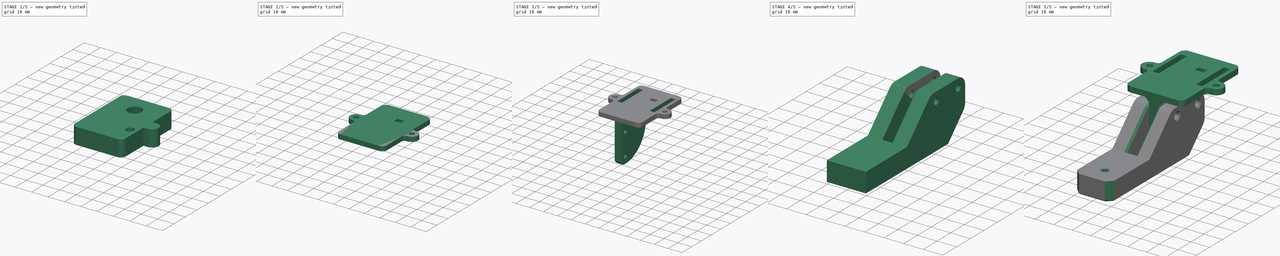
[diagram: build sequence overview — one tinted view per stage of 5, left to right]
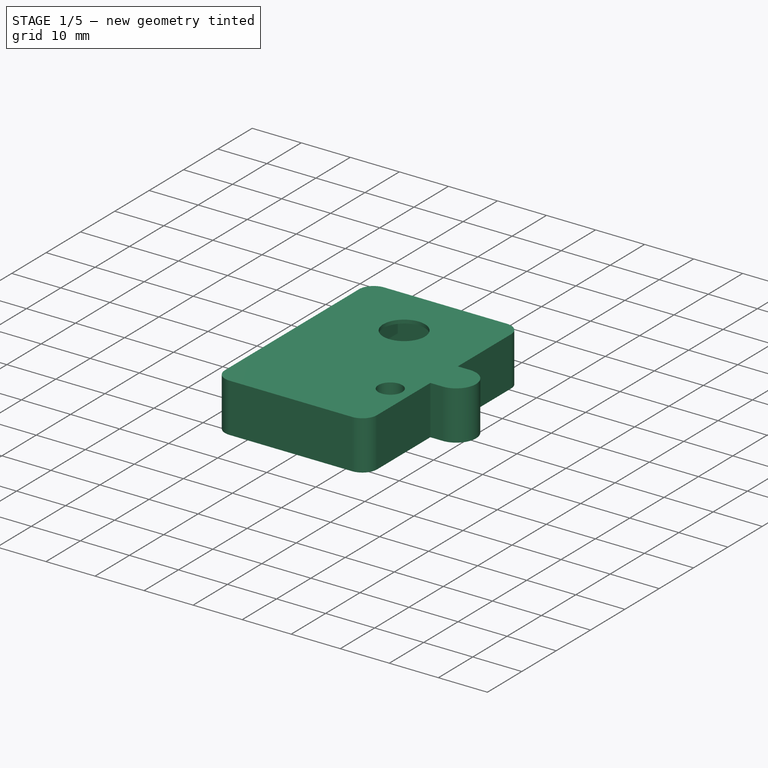
[diagram: stage 1 of 5 — iso view after this stage's code; geometry added in this stage tinted green]
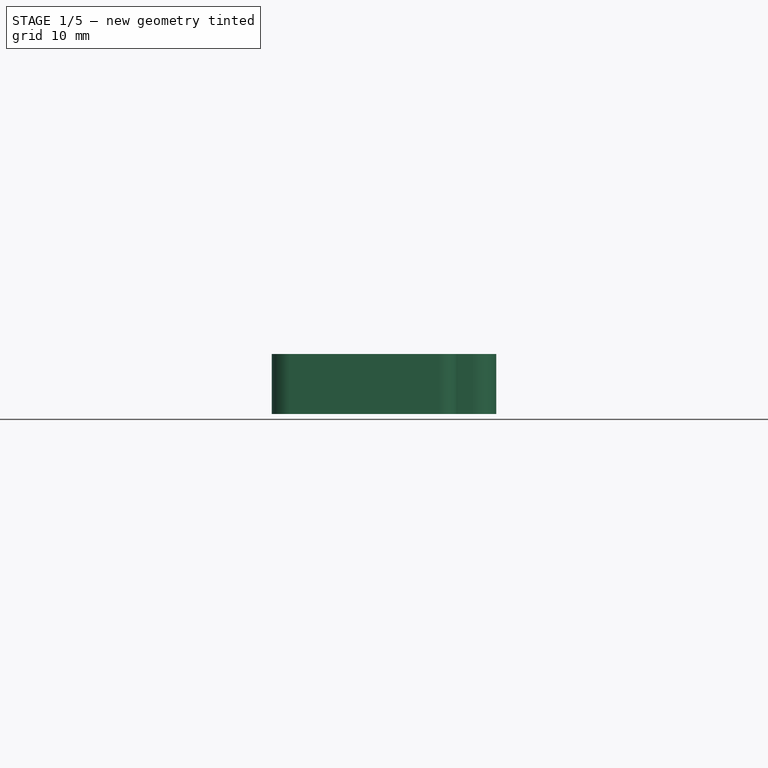
[diagram: stage 1 of 5 — front view after this stage's code; geometry added in this stage tinted green]
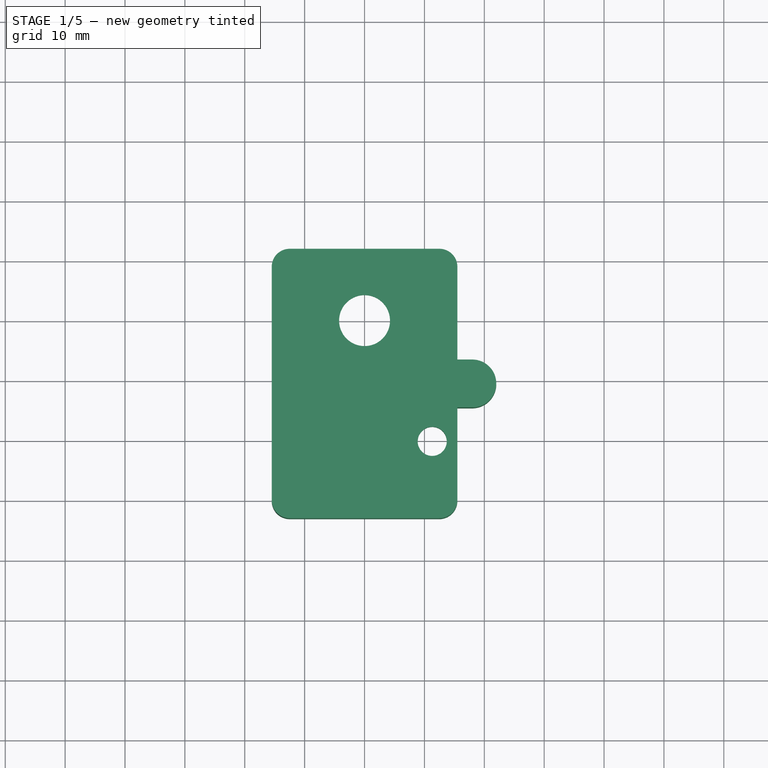
[diagram: stage 1 of 5 — top view after this stage's code; geometry added in this stage tinted green]
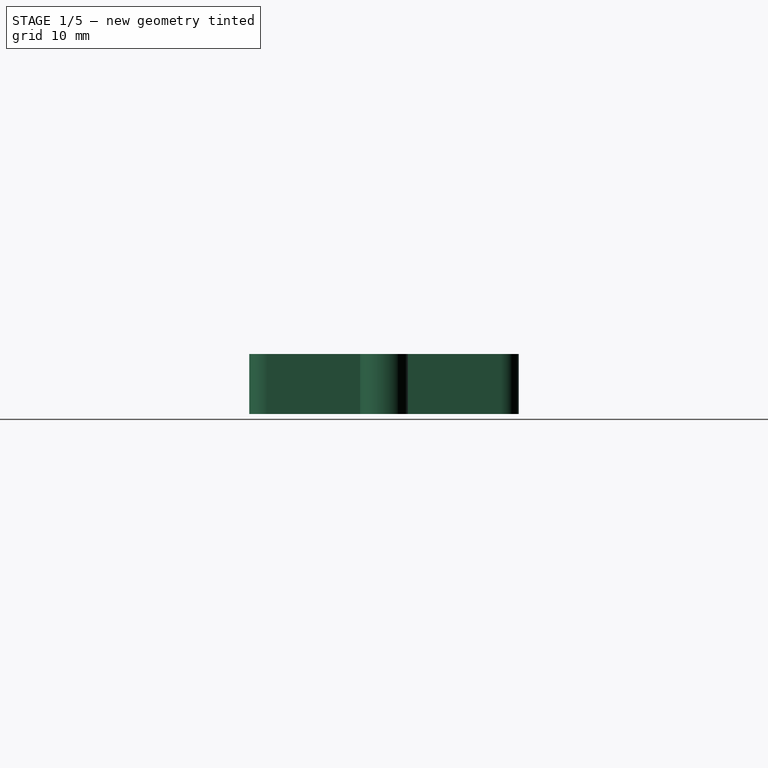
[diagram: stage 1 of 5 — right view after this stage's code; geometry added in this stage tinted green]
FCSTD DOCUMENT  (FreeCAD 1.2R20260429 (Git shallow))
Label: EspCamSupport
License: All rights reserved
objects: Sketcher::SketchObject×14, PartDesign::Pocket×9, PartDesign::Chamfer×8, PartDesign::Pad×5, PartDesign::Fillet×5, App::Point×4, PartDesign::Body×3, Image::ImagePlane×2, PartDesign::Mirrored×2, PartDesign::ShapeBinder×2, Part::Feature×1, App::Part×1, Part::DatumLine×1, PartDesign::PolarPattern×1
note: 121 computed .brp shape members not serialized (recipe doc carries the construction recipe); baked Part::Feature solids carry a one-line shape summary decoded from their .brp

FEATURE [Part::Feature] Part__Feature020  label="ClipRail"
  Placement = pos=(-1.10003e-11,-70.5,-83) rot=(0.774597,-0.447214,0.447214;1.82348rad)
  shape: bbox 27.84 x 20 x 21.97 mm, 24 faces (baked)
FEATURE [Image::ImagePlane] image1_2  label="image1-2"
  XSize = 41.453
  YSize = 73.2026
FEATURE [Image::ImagePlane] image1
  Placement = pos=(-0.433,-5.867,0) rot=(0,0,1;0rad)
  XSize = 55.0562
  YSize = 95.2704
FEATURE [App::Point] Origin003  label="Origine-point001"
  Role = Origin
FEATURE [App::Part] Part
  Group = -> [image1,image1_2]
  Origin = -> Origin004
  Placement = pos=(-2.427,-16.404,0) rot=(0,0,1;0rad)
FEATURE [App::Point] Origin005  label="Origine-point002"
  Role = Origin
FEATURE [Sketcher::SketchObject] Sketch001
  ArcFitTolerance = 1e-06
  AttachmentSupport = -> [Origin002]
  ExternalTypes = [0]
  FullyConstrained = false
  MakeInternals = true
  MapMode = 5
  sketch-geometry (7):
    g0: Circle CenterX=0 CenterY=0 CenterZ=0 NormalX=0 NormalY=0 NormalZ=1 AngleXU=0 Radius=4.25
    g1: LineSegment StartX=-15.5 StartY=-33 StartZ=0 EndX=15.5 EndY=-33 EndZ=0
    g2: LineSegment StartX=15.5 StartY=-33 StartZ=0 EndX=15.5 EndY=12 EndZ=0
    g3: LineSegment StartX=15.5 StartY=12 StartZ=0 EndX=-15.5 EndY=12 EndZ=0
    g4: LineSegment StartX=-15.5 StartY=12 StartZ=0 EndX=-15.5 EndY=-33 EndZ=0
    g5: GeomPoint [constr] X=0 Y=-10.5 Z=0
    g6: Circle CenterX=11.301 CenterY=-20.1664 CenterZ=0 NormalX=0 NormalY=0 NormalZ=1 AngleXU=0 Radius=2.4289
  constraints (15):
    c: Coincident(g0,g-1)
    c: Diameter(g0) = 8.5
    c: Coincident(g1,g2)
    c: Coincident(g2,g3)
    c: Coincident(g3,g4)
    c: Coincident(g4,g1)
    c: Horizontal(g1)
    c: Horizontal(g3)
    c: Vertical(g2)
    c: Vertical(g4)
    c: Symmetric(g3,g1,g5)
    c: PointOnObject(g5,g-2)
    c: DistanceX(g3,g3) = 31
    c: DistanceY(g2,g2) = 45
    c: Distance(g3,g-1) = 12
FEATURE [PartDesign::Pad] Pad001
  Direction = (0,0,1)
  Length = 10
  Length2 = 10
  Profile = -> Sketch001
  ReferenceAxis = -> Sketch001 [N_Axis]
  Refine = true
  SideType = 0
  Suppressed = false
  Type = 0
  Type2 = 0
FEATURE [Sketcher::SketchObject] Sketch002
  ArcFitTolerance = 1e-06
  AttachmentSupport = -> [Pad001]
  ExternalGeometry = -> [Pad001]
  ExternalTypes = [0,0]
  FullyConstrained = true
  MakeInternals = true
  MapMode = 5
  Placement = pos=(0,0,0) rot=(1,0,0;3.14159rad)
  sketch-geometry (5):
    g0: LineSegment StartX=-14 StartY=31.5 StartZ=0 EndX=-14 EndY=-10.5 EndZ=0
    g1: LineSegment StartX=-14 StartY=-10.5 StartZ=0 EndX=14 EndY=-10.5 EndZ=0
    g2: LineSegment StartX=14 StartY=-10.5 StartZ=0 EndX=14 EndY=31.5 EndZ=0
    g3: LineSegment StartX=14 StartY=31.5 StartZ=0 EndX=-14 EndY=31.5 EndZ=0
    g4: GeomPoint [constr] X=1e-16 Y=10.5 Z=0
  constraints (12):
    c: Coincident(g0,g1)
    c: Coincident(g1,g2)
    c: Coincident(g2,g3)
    c: Coincident(g3,g0)
    c: Vertical(g0)
    c: Vertical(g2)
    c: Horizontal(g1)
    c: Horizontal(g3)
    c: Symmetric(g2,g0,g4)
    c: Symmetric(g-4,g-3,g4)
    c: Distance(g-3,g2) = 1.5
    c: Distance(g-3,g3) = 1.5
FEATURE [PartDesign::Pocket] Pocket
  BaseFeature = -> Pad001
  Direction = (0,0,1)
  Length = 6.68
  Length2 = 5
  Profile = -> Sketch002
  ReferenceAxis = -> Sketch002 [N_Axis]
  Refine = true
  SideType = 0
  Suppressed = false
  Type = 0
  Type2 = 0
FEATURE [PartDesign::Fillet] Fillet
  Base = -> Pocket [Edge19,Edge22,Edge20,Edge24]
  BaseFeature = -> Pocket
  Radius = 2
  Refine = true
  SupportTransform = false
  Suppressed = false
  UseAllEdges = false
FEATURE [PartDesign::Fillet] Fillet001
  Base = -> Fillet [Edge29,Edge30,Edge32,Edge34]
  BaseFeature = -> Fillet
  Radius = 3
  Refine = true
  SupportTransform = false
  Suppressed = false
  UseAllEdges = false
FEATURE [Sketcher::SketchObject] Sketch003
  ArcFitTolerance = 1e-06
  AttachmentSupport = -> [Fillet001]
  ExternalTypes = [0]
  FullyConstrained = true
  MakeInternals = true
  MapMode = 5
  Placement = pos=(0,0,6.68) rot=(1,0,0;3.14159rad)
  sketch-geometry (5):
    g0: LineSegment StartX=-4.3 StartY=-4.3 StartZ=0 EndX=4.3 EndY=-4.3 EndZ=0
    g1: LineSegment StartX=4.3 StartY=-4.3 StartZ=0 EndX=4.3 EndY=4.3 EndZ=0
    g2: LineSegment StartX=4.3 StartY=4.3 StartZ=0 EndX=-4.3 EndY=4.3 EndZ=0
    g3: LineSegment StartX=-4.3 StartY=4.3 StartZ=0 EndX=-4.3 EndY=-4.3 EndZ=0
    g4: GeomPoint [constr] X=0 Y=0 Z=0
  constraints (12):
    c: Coincident(g0,g1)
    c: Coincident(g1,g2)
    c: Coincident(g2,g3)
    c: Coincident(g3,g0)
    c: Horizontal(g0)
    c: Horizontal(g2)
    c: Vertical(g1)
    c: Vertical(g3)
    c: Symmetric(g2,g0,g4)
    c: Coincident(g4,g-1)
    c: Equal(g1,g2)
    c: DistanceY(g1,g1) = 8.6
FEATURE [PartDesign::Pocket] Pocket001
  BaseFeature = -> Fillet001
  Direction = (0,0,1)
  Length = 2.6
  Length2 = 5
  Profile = -> Sketch003
  ReferenceAxis = -> Sketch003 [N_Axis]
  Refine = true
  SideType = 0
  Suppressed = false
  Type = 0
  Type2 = 0
FEATURE [Sketcher::SketchObject] Sketch004
  ArcFitTolerance = 1e-06
  AttachmentSupport = -> [Pocket001]
  ExternalGeometry = -> [Pocket001]
  ExternalTypes = [0,0]
  FullyConstrained = true
  MakeInternals = true
  MapMode = 5
  Placement = pos=(0,0,0) rot=(1,0,0;3.14159rad)
  sketch-geometry (6):
    g0: ArcOfCircle [constr] CenterX=15.5 CenterY=10.5 CenterZ=0 NormalX=0 NormalY=0 NormalZ=1 AngleXU=0 Radius=4 StartAngle=1.5708 EndAngle=4.71239
    g1: ArcOfCircle CenterX=18 CenterY=10.5 CenterZ=0 NormalX=0 NormalY=0 NormalZ=1 AngleXU=0 Radius=4 StartAngle=4.71239 EndAngle=7.85398
    g2: LineSegment StartX=15.5 StartY=14.5 StartZ=0 EndX=18 EndY=14.5 EndZ=0
    g3: LineSegment StartX=15.5 StartY=6.5 StartZ=0 EndX=18 EndY=6.5 EndZ=0
    g4: LineSegment StartX=15.5 StartY=14.5 StartZ=0 EndX=15.5 EndY=6.5 EndZ=0
    g5: Circle [constr] CenterX=18 CenterY=10.5 CenterZ=0 NormalX=0 NormalY=0 NormalZ=1 AngleXU=0 Radius=4
  constraints (13):
    c: Tangent(g0,g2) = 1.5708
    c: Tangent(g0,g3) = -1.5708
    c: Tangent(g1,g2) = 1.5708
    c: Tangent(g1,g3) = -1.5708
    c: Equal(g0,g1)
    c: Symmetric(g-3,g-3,g0)
    c: Horizontal(g2)
    c: Coincident(g4,g0)
    c: Coincident(g4,g0)
    c: Diameter(g1) = 8
    c: Coincident(g5,g1)
    c: PointOnObject(g1,g5)
    c: Tangent(g5,g-4)
FEATURE [PartDesign::Pad] Pad002
  BaseFeature = -> Pocket001
  Direction = (0,0,-1)
  Length = 10
  Length2 = 10
  Profile = -> Sketch004
  ReferenceAxis = -> Sketch004 [N_Axis]
  Refine = true
  Reversed = true
  SideType = 0
  Suppressed = false
  Type = 0
  Type2 = 0
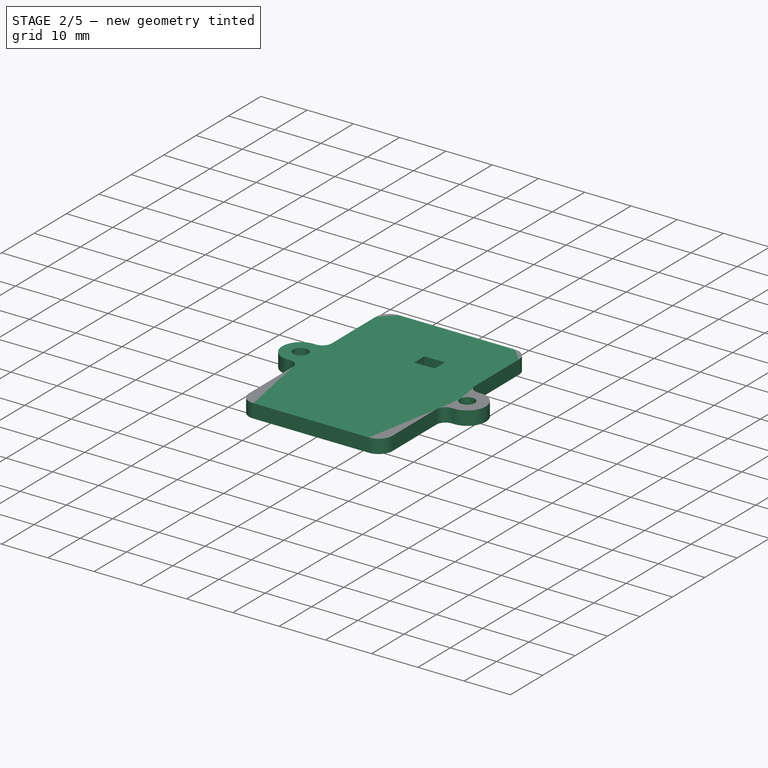
[diagram: stage 2 of 5 — iso view after this stage's code; geometry added in this stage tinted green]
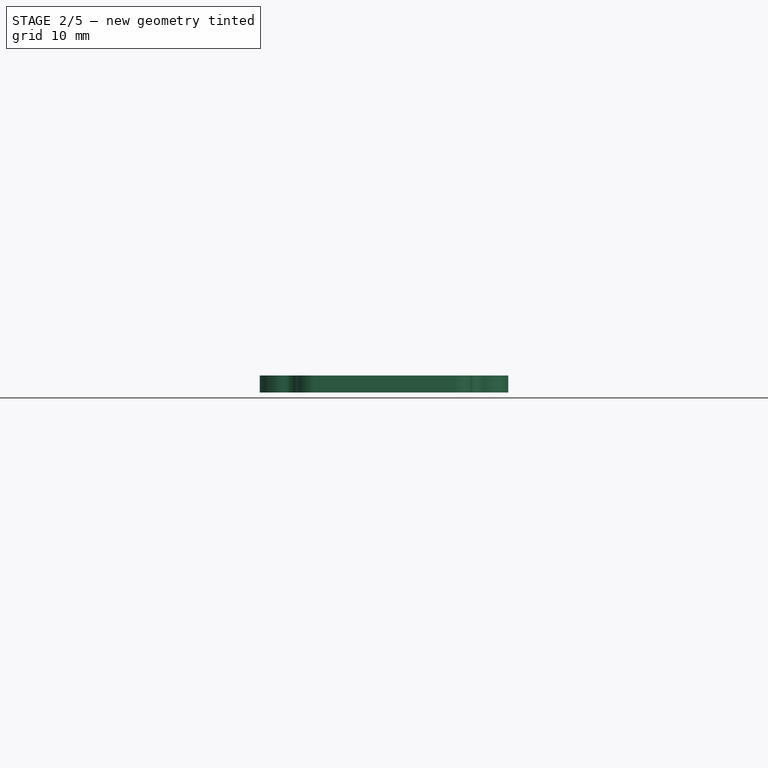
[diagram: stage 2 of 5 — front view after this stage's code; geometry added in this stage tinted green]
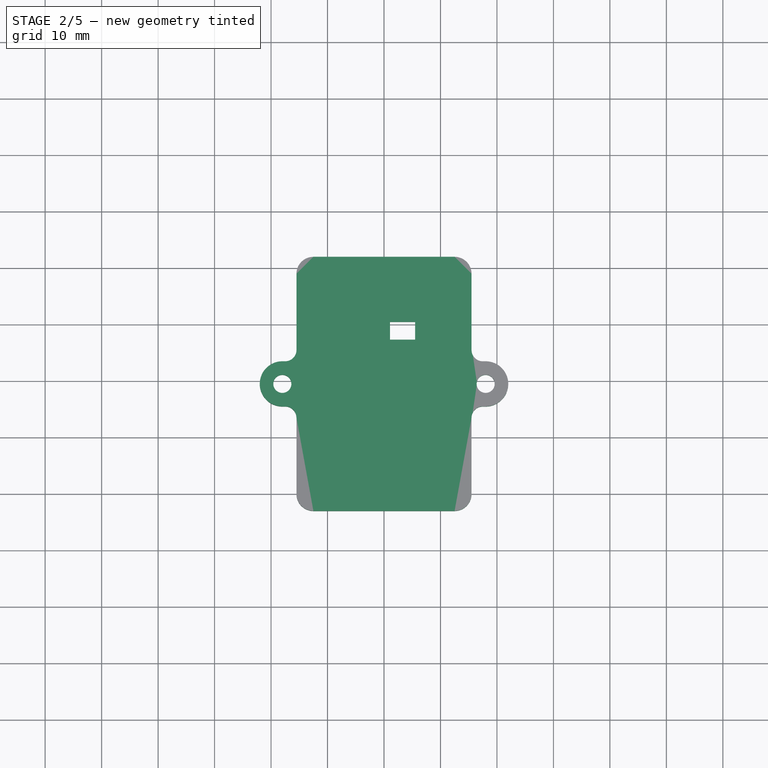
[diagram: stage 2 of 5 — top view after this stage's code; geometry added in this stage tinted green]
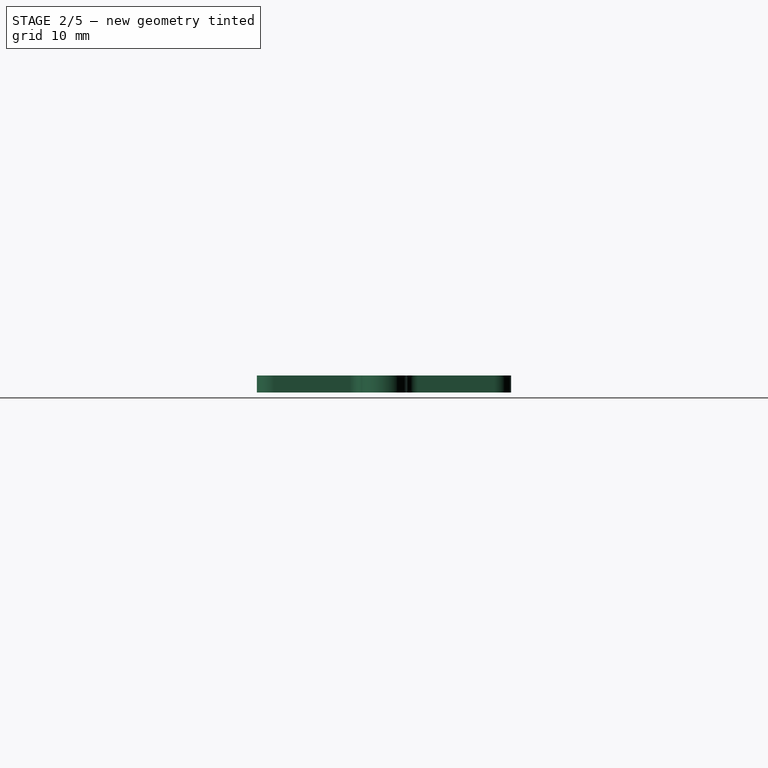
[diagram: stage 2 of 5 — right view after this stage's code; geometry added in this stage tinted green]
FEATURE [Sketcher::SketchObject] Sketch005
  ArcFitTolerance = 1e-06
  AttachmentSupport = -> [Pad002]
  ExternalGeometry = -> [Pad002]
  ExternalTypes = [0]
  FullyConstrained = true
  MakeInternals = true
  MapMode = 5
  Placement = pos=(0,0,0) rot=(1,0,0;3.14159rad)
  sketch-geometry (1):
    g0: Circle CenterX=18 CenterY=10.5 CenterZ=0 NormalX=0 NormalY=0 NormalZ=1 AngleXU=0 Radius=2.2
  constraints (2):
    c: Coincident(g0,g-3)
    c: Diameter(g0) = 4.4
FEATURE [PartDesign::Pocket] Pocket002
  BaseFeature = -> Pad002
  Direction = (0,0,1)
  Length = 8
  Length2 = 5
  Profile = -> Sketch005
  ReferenceAxis = -> Sketch005 [N_Axis]
  Refine = true
  SideType = 0
  Suppressed = false
  Type = 0
  Type2 = 0
FEATURE [PartDesign::Fillet] Fillet002
  Base = -> Pocket002 [Edge45,Edge4]
  BaseFeature = -> Pocket002
  Radius = 2
  Refine = true
  SupportTransform = false
  Suppressed = false
  UseAllEdges = false
FEATURE [PartDesign::Mirrored] Mirrored
  BaseFeature = -> Fillet002
  MirrorPlane = -> Sketch004 [V_Axis]
  Originals = -> [Pad002,Fillet002,Pocket002]
  Refine = true
  Suppressed = false
  TransformMode = 0
FEATURE [PartDesign::Chamfer] Chamfer001
  Angle = 45
  Base = -> Mirrored [Face42,Edge70,Edge69]
  BaseFeature = -> Mirrored
  ChamferType = 0
  FlipDirection = false
  Refine = true
  Size = 0.4
  Size2 = 1
  SupportTransform = false
  Suppressed = false
  UseAllEdges = false
FEATURE [PartDesign::Body] Body001  label="MainBodyCamSupport"
  AllowCompound = true
  Group = -> [Sketch001,Pad001,Sketch002,Pocket,Fillet,Fillet001,Sketch003,Pocket001,Sketch004,Pad002,Sketch005,Pocket002,Fillet002,Mirrored,Chamfer001]
  Origin = -> Origin002
  Tip = -> Chamfer001
FEATURE [App::Point] Origin007  label="Origine-point003"
  Role = Origin
FEATURE [PartDesign::ShapeBinder] ShapeBinder001
  Support = -> [Chamfer001]
  TraceSupport = false
FEATURE [Sketcher::SketchObject] Sketch006
  ArcFitTolerance = 1e-06
  AttachmentSupport = -> [Origin006]
  ExternalGeometry = -> [ShapeBinder001]
  ExternalTypes = [0,0,0,0,0,0,0,0,0,0,0,0,0,0,0,0,0,0,0,0]
  FullyConstrained = true
  MakeInternals = true
  MapMode = 5
  sketch-geometry (2):
    g0: Circle CenterX=-18 CenterY=-10.5 CenterZ=0 NormalX=0 NormalY=0 NormalZ=1 AngleXU=0 Radius=1.6
    g1: Circle CenterX=18 CenterY=-10.5 CenterZ=0 NormalX=0 NormalY=0 NormalZ=1 AngleXU=0 Radius=1.6
  constraints (4):
    c: Coincident(g0,g-3)
    c: Coincident(g1,g-16)
    c: Equal(g1,g0)
    c: Diameter(g1) = 3.2
FEATURE [PartDesign::Pad] Pad003
  Direction = (0,0,1)
  Length = 3
  Length2 = 10
  Profile = -> Sketch006
  ReferenceAxis = -> Sketch006 [N_Axis]
  Refine = true
  Reversed = true
  SideType = 0
  Suppressed = false
  Type = 0
  Type2 = 0
FEATURE [Sketcher::SketchObject] Sketch007
  ArcFitTolerance = 1e-06
  AttachmentSupport = -> [Origin006]
  ExternalTypes = [0]
  FullyConstrained = false
  MakeInternals = true
  MapMode = 5
  sketch-geometry (5):
    g0: LineSegment StartX=1.07076 StartY=0.47975 StartZ=0 EndX=1.07076 EndY=-2.67484 EndZ=0
    g1: LineSegment StartX=1.07076 StartY=-2.67484 StartZ=0 EndX=5.50136 EndY=-2.67484 EndZ=0
    g2: LineSegment StartX=5.50136 StartY=-2.67484 StartZ=0 EndX=5.50136 EndY=0.47975 EndZ=0
    g3: LineSegment StartX=5.50136 StartY=0.47975 StartZ=0 EndX=1.07076 EndY=0.47975 EndZ=0
    g4: GeomPoint [constr] X=3.28606 Y=-1.09754 Z=0
  constraints (9):
    c: Coincident(g0,g1)
    c: Coincident(g1,g2)
    c: Coincident(g2,g3)
    c: Coincident(g3,g0)
    c: Vertical(g0)
    c: Vertical(g2)
    c: Horizontal(g1)
    c: Horizontal(g3)
    c: Symmetric(g2,g0,g4)
FEATURE [PartDesign::Pocket] Pocket003
  BaseFeature = -> Pad003
  Direction = (0,0,-1)
  Length = 5
  Length2 = 5
  Profile = -> Sketch007
  ReferenceAxis = -> Sketch007 [N_Axis]
  Refine = true
  SideType = 0
  Suppressed = false
  Type = 0
  Type2 = 0
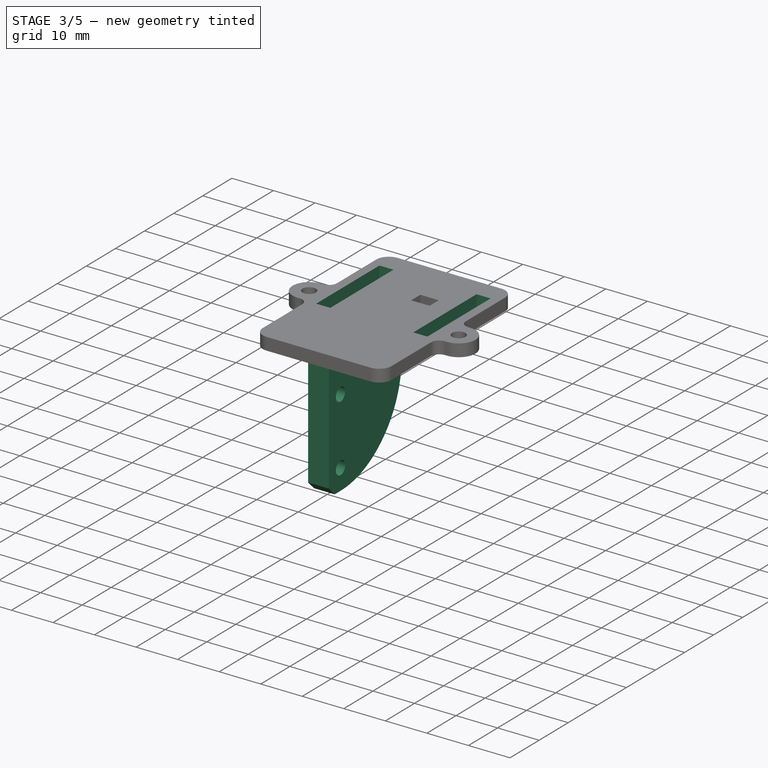
[diagram: stage 3 of 5 — iso view after this stage's code; geometry added in this stage tinted green]
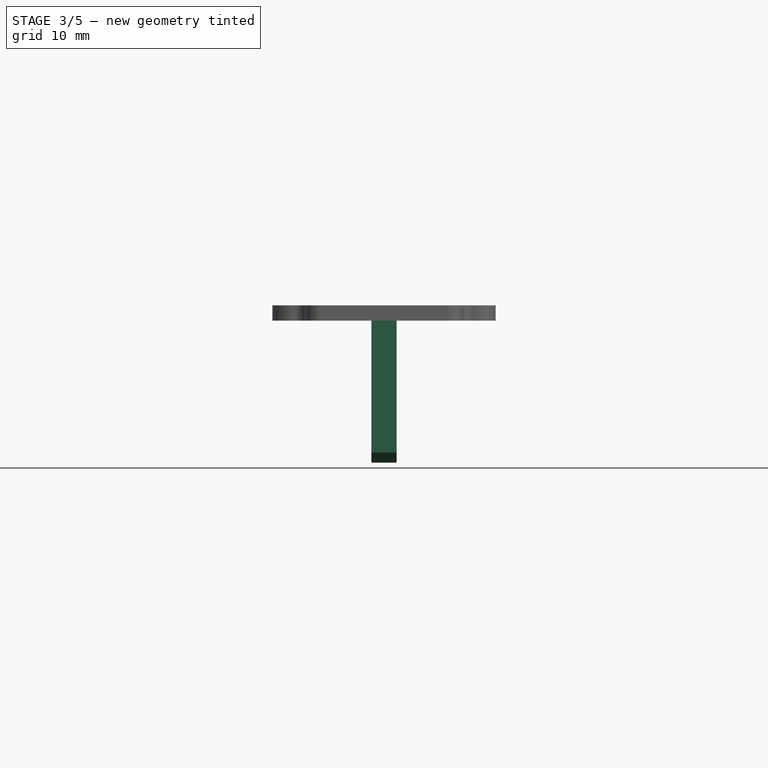
[diagram: stage 3 of 5 — front view after this stage's code; geometry added in this stage tinted green]
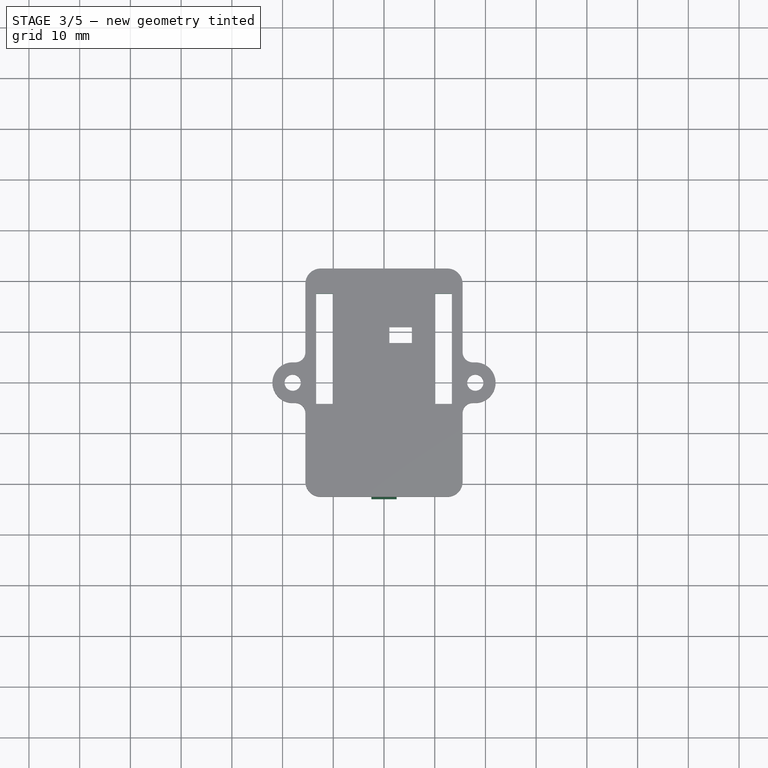
[diagram: stage 3 of 5 — top view after this stage's code; geometry added in this stage tinted green]
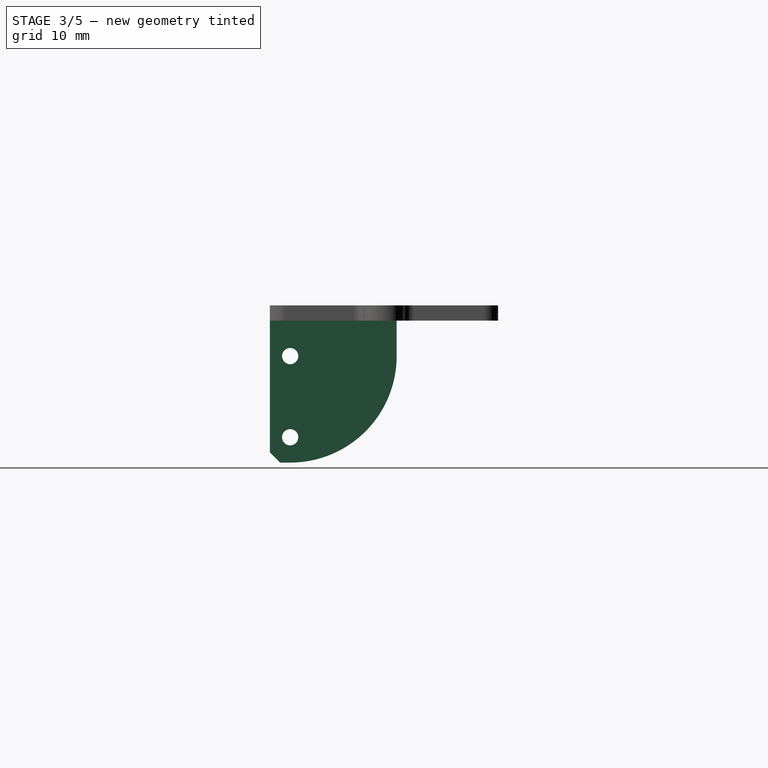
[diagram: stage 3 of 5 — right view after this stage's code; geometry added in this stage tinted green]
FEATURE [Sketcher::SketchObject] Sketch008
  ArcFitTolerance = 1e-06
  AttachmentSupport = -> [Origin006]
  ExternalTypes = [0]
  FullyConstrained = false
  MakeInternals = true
  MapMode = 5
  sketch-geometry (4):
    g0: LineSegment StartX=-13.3803 StartY=7.03763 StartZ=0 EndX=-13.3803 EndY=-14.6949 EndZ=0
    g1: LineSegment StartX=-13.3803 StartY=-14.6949 StartZ=0 EndX=-9.98825 EndY=-14.6949 EndZ=0
    g2: LineSegment StartX=-9.98825 StartY=-14.6949 StartZ=0 EndX=-9.98825 EndY=7.03763 EndZ=0
    g3: LineSegment StartX=-9.98825 StartY=7.03763 StartZ=0 EndX=-13.3803 EndY=7.03763 EndZ=0
  constraints (8):
    c: Coincident(g0,g1)
    c: Coincident(g1,g2)
    c: Coincident(g2,g3)
    c: Coincident(g3,g0)
    c: Vertical(g0)
    c: Vertical(g2)
    c: Horizontal(g1)
    c: Horizontal(g3)
FEATURE [PartDesign::Pocket] Pocket004
  BaseFeature = -> Pocket003
  Direction = (0,0,-1)
  Length = 5
  Length2 = 5
  Profile = -> Sketch008
  ReferenceAxis = -> Sketch008 [N_Axis]
  Refine = true
  SideType = 0
  Suppressed = false
  Type = 0
  Type2 = 0
FEATURE [PartDesign::Mirrored] Mirrored001
  BaseFeature = -> Pocket004
  MirrorPlane = -> Sketch008 [V_Axis]
  Originals = -> [Pocket004]
  Refine = true
  Suppressed = false
  TransformMode = 0
FEATURE [Sketcher::SketchObject] Sketch009
  ArcFitTolerance = 1e-06
  AttachmentSupport = -> [Mirrored001]
  ExternalGeometry = -> [Mirrored001]
  ExternalTypes = [0]
  FullyConstrained = true
  MakeInternals = true
  MapMode = 5
  Placement = pos=(0,0,-3) rot=(1,0,0;3.14159rad)
  sketch-geometry (5):
    g0: LineSegment StartX=-2.5 StartY=8 StartZ=0 EndX=2.5 EndY=8 EndZ=0
    g1: LineSegment StartX=2.5 StartY=8 StartZ=0 EndX=2.5 EndY=33 EndZ=0
    g2: LineSegment StartX=2.5 StartY=33 StartZ=0 EndX=-2.5 EndY=33 EndZ=0
    g3: LineSegment StartX=-2.5 StartY=33 StartZ=0 EndX=-2.5 EndY=8 EndZ=0
    g4: GeomPoint [constr] X=0 Y=20.5 Z=0
  constraints (13):
    c: Coincident(g0,g1)
    c: Coincident(g1,g2)
    c: Coincident(g2,g3)
    c: Coincident(g3,g0)
    c: Horizontal(g0)
    c: Horizontal(g2)
    c: Vertical(g1)
    c: Vertical(g3)
    c: Symmetric(g2,g0,g4)
    c: PointOnObject(g4,g-2)
    c: PointOnObject(g1,g-3)
    c: DistanceX(g2,g2) = 5
    c: DistanceY(g1,g1) = 25
FEATURE [PartDesign::Pad] Pad004
  BaseFeature = -> Mirrored001
  Direction = (0,0,-1)
  Length = 28
  Length2 = 10
  Profile = -> Sketch009
  ReferenceAxis = -> Sketch009 [N_Axis]
  Refine = true
  SideType = 0
  Suppressed = false
  Type = 0
  Type2 = 0
FEATURE [Sketcher::SketchObject] Sketch010
  ArcFitTolerance = 1e-06
  AttachmentSupport = -> [Origin006]
  ExternalGeometry = -> [Pad004]
  ExternalTypes = [0,0,0]
  FullyConstrained = true
  MakeInternals = true
  MapMode = 5
  Placement = pos=(0,0,0) rot=(0.57735,0.57735,0.57735;2.0944rad)
  sketch-geometry (8):
    g0: Circle CenterX=-29 CenterY=-10 CenterZ=0 NormalX=0 NormalY=0 NormalZ=1 AngleXU=0 Radius=1.6
    g1: ArcOfCircle CenterX=-29 CenterY=-10 CenterZ=0 NormalX=0 NormalY=0 NormalZ=1 AngleXU=0 Radius=21 StartAngle=4.71239 EndAngle=6.28319
    g2: LineSegment StartX=-8 StartY=-3 StartZ=0 EndX=0 EndY=-3 EndZ=0
    g3: LineSegment StartX=0 StartY=-3 StartZ=0 EndX=0 EndY=-39 EndZ=0
    g4: LineSegment StartX=-33 StartY=-31 StartZ=0 EndX=-33 EndY=-39 EndZ=0
    g5: LineSegment StartX=-33 StartY=-39 StartZ=0 EndX=0 EndY=-39 EndZ=0
    g6: LineSegment StartX=-33 StartY=-31 StartZ=0 EndX=-28.9999 EndY=-31 EndZ=0
    g7: LineSegment StartX=-8 StartY=-10 StartZ=0 EndX=-8 EndY=-3 EndZ=0
  constraints (22):
    c: Diameter(g0) = 3.2
    c: Distance(g0,g-3) = 4
    c: Coincident(g1,g0)
    c: Tangent(g1,g-4)
    c: Tangent(g1,g-5) = 1.5708
    c: Coincident(g2,g-5)
    c: PointOnObject(g2,g-2)
    c: Coincident(g3,g2)
    c: PointOnObject(g3,g-2)
    c: Coincident(g4,g-4)
    c: Vertical(g4)
    c: Coincident(g5,g4)
    c: Coincident(g5,g3)
    c: Horizontal(g5)
    c: Coincident(g6,g4)
    c: Coincident(g6,g1)
    c: Horizontal(g6)
    c: Tangent(g7,g1) = -1.5708
    c: Coincident(g7,g2)
    c: Vertical(g7)
    c: Horizontal(g2)
    c: Equal(g4,g2)
FEATURE [PartDesign::Pocket] Pocket005
  BaseFeature = -> Pad004
  Direction = (-1,0,0)
  Length = 9
  Length2 = 5
  Profile = -> Sketch010
  ReferenceAxis = -> Sketch010 [N_Axis]
  Refine = true
  SideType = 2
  Suppressed = false
  Type = 0
  Type2 = 0
FEATURE [PartDesign::Chamfer] Chamfer002
  Angle = 45
  Base = -> Pocket005 [Edge7]
  BaseFeature = -> Pocket005
  ChamferType = 0
  FlipDirection = false
  Refine = true
  Size = 2
  Size2 = 1
  SupportTransform = false
  Suppressed = false
  UseAllEdges = false
FEATURE [Sketcher::SketchObject] Sketch011
  ArcFitTolerance = 1e-06
  AttachmentSupport = -> [Origin006]
  ExternalGeometry = -> [Chamfer002]
  ExternalTypes = [0]
  FullyConstrained = true
  MakeInternals = true
  MapMode = 5
  Placement = pos=(0,0,0) rot=(0.57735,0.57735,0.57735;2.0944rad)
  sketch-geometry (2):
    g0: ArcOfCircle [constr] CenterX=-29 CenterY=-10 CenterZ=0 NormalX=0 NormalY=0 NormalZ=1 AngleXU=0 Radius=16 StartAngle=4.71239 EndAngle=6.28319
    g1: Circle CenterX=-29 CenterY=-26 CenterZ=0 NormalX=0 NormalY=0 NormalZ=1 AngleXU=0 Radius=1.6
  constraints (6):
    c: Coincident(g0,g-3)
    c: Coincident(g1,g0)
    c: Vertical(g0,g0)
    c: Horizontal(g0,g0)
    c: DistanceY(g0,g0) = 16
    c: Equal(g-3,g1)
FEATURE [PartDesign::Pocket] Pocket006
  BaseFeature = -> Chamfer002
  Direction = (-1,0,0)
  Length = 5
  Length2 = 5
  Profile = -> Sketch011
  ReferenceAxis = -> Sketch011 [N_Axis]
  Refine = true
  SideType = 2
  Suppressed = false
  Type = 0
  Type2 = 0
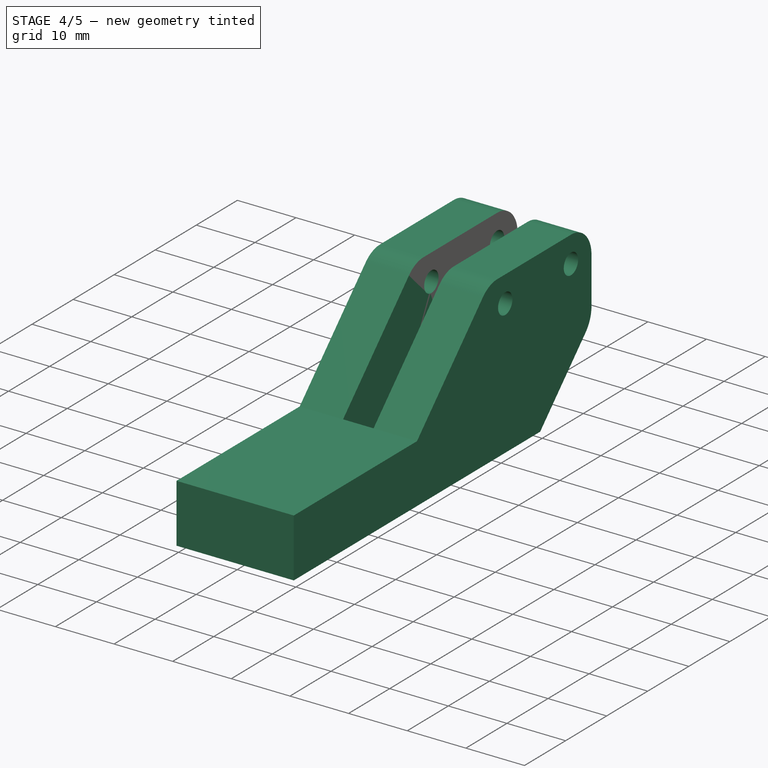
[diagram: stage 4 of 5 — iso view after this stage's code; geometry added in this stage tinted green]
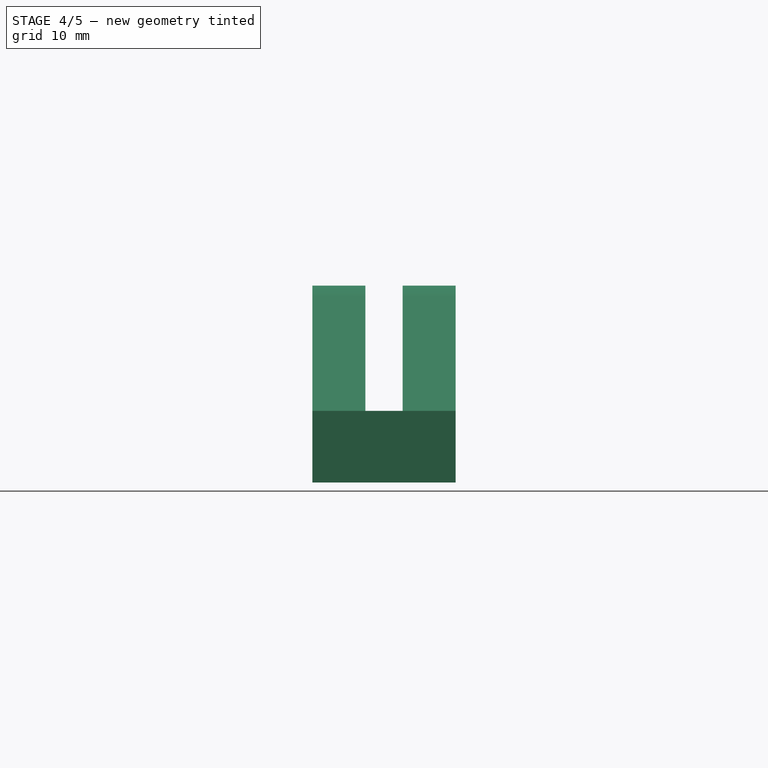
[diagram: stage 4 of 5 — front view after this stage's code; geometry added in this stage tinted green]
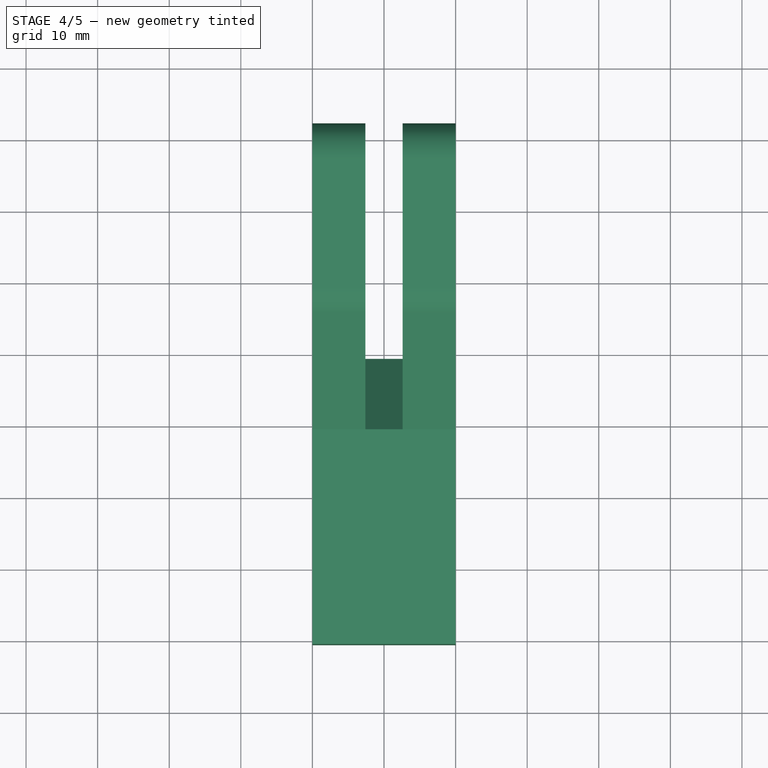
[diagram: stage 4 of 5 — top view after this stage's code; geometry added in this stage tinted green]
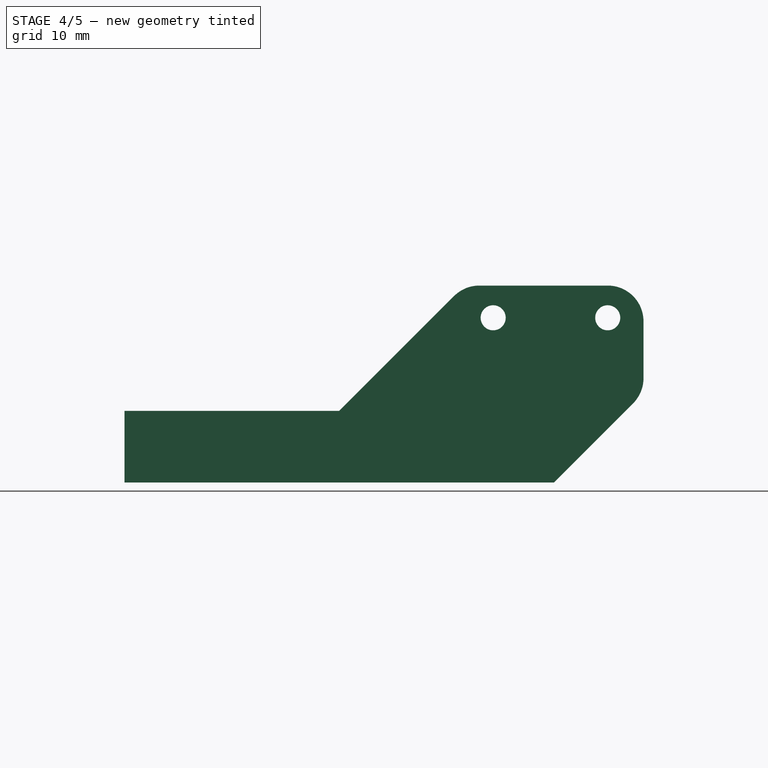
[diagram: stage 4 of 5 — right view after this stage's code; geometry added in this stage tinted green]
FEATURE [Part::DatumLine] DatumLine
  AttacherType = Attacher::AttachEngineLine
  AttachmentSupport = -> [Pocket006]
  MapMode = 19
  Placement = pos=(-2.5,-29,-10) rot=(0.57735,0.57735,0.57735;2.0944rad)
FEATURE [PartDesign::PolarPattern] PolarPattern
  Angle = 90
  Axis = -> DatumLine
  BaseFeature = -> Pocket006
  Mode = 0
  Occurrences = 6
  Offset = 120
  Originals = -> [Pocket006]
  Refine = true
  SpacingPattern = [0]
  Spacings = [-1,-1,-1,-1,-1]
  Suppressed = false
  TransformMode = 0
FEATURE [PartDesign::Fillet] Fillet003
  Base = -> PolarPattern [Edge43]
  BaseFeature = -> PolarPattern
  Radius = 4
  Refine = true
  SupportTransform = false
  Suppressed = false
  UseAllEdges = false
FEATURE [PartDesign::Chamfer] Chamfer003
  Angle = 45
  Base = -> Fillet003 [Edge6,Edge26]
  BaseFeature = -> Fillet003
  ChamferType = 0
  FlipDirection = false
  Refine = true
  Size = 2
  Size2 = 1
  SupportTransform = false
  Suppressed = false
  UseAllEdges = false
FEATURE [PartDesign::Body] Body002  label="CapotCamSupport"
  AllowCompound = true
  Group = -> [ShapeBinder001,Sketch006,Pad003,Sketch007,Pocket003,Sketch008,Pocket004,Mirrored001,Sketch009,Pad004,Sketch010,Pocket005,Chamfer002,Sketch011,Pocket006,DatumLine,PolarPattern,Fillet003,Chamfer003,Chamfer004]
  Origin = -> Origin006
  Tip = -> Chamfer004
FEATURE [PartDesign::ShapeBinder] ShapeBinder002
  Support = -> [Chamfer003]
  TraceSupport = false
FEATURE [Sketcher::SketchObject] Sketch012
  ArcFitTolerance = 1e-06
  AttachmentSupport = -> [Origin008]
  ExternalGeometry = -> [ShapeBinder002]
  ExternalTypes = [0,0,0,0,0]
  FullyConstrained = true
  MakeInternals = true
  MapMode = 5
  Placement = pos=(0,0,0) rot=(0.57735,0.57735,0.57735;2.0944rad)
  sketch-geometry (9):
    g0: Circle CenterX=-29 CenterY=-10 CenterZ=0 NormalX=0 NormalY=0 NormalZ=1 AngleXU=0 Radius=1.75
    g1: Circle CenterX=-13 CenterY=-10 CenterZ=0 NormalX=0 NormalY=0 NormalZ=1 AngleXU=0 Radius=1.75
    g2: LineSegment StartX=-80.5 StartY=-23 StartZ=0 EndX=-50.5 EndY=-23 EndZ=0
    g3: LineSegment StartX=-50.5 StartY=-23 StartZ=0 EndX=-33 EndY=-5.5 EndZ=0
    g4: LineSegment StartX=-33 StartY=-5.5 StartZ=0 EndX=-8 EndY=-5.5 EndZ=0
    g5: LineSegment StartX=-8 StartY=-5.5 StartZ=0 EndX=-8 EndY=-20.5 EndZ=0
    g6: LineSegment StartX=-8 StartY=-20.5 StartZ=0 EndX=-20.5 EndY=-33 EndZ=0
    g7: LineSegment StartX=-20.5 StartY=-33 StartZ=0 EndX=-80.5 EndY=-33 EndZ=0
    g8: LineSegment StartX=-80.5 StartY=-33 StartZ=0 EndX=-80.5 EndY=-23 EndZ=0
  constraints (25):
    c: Coincident(g0,g-3)
    c: Coincident(g1,g-4)
    c: Equal(g1,g0)
    c: Diameter(g1) = 3.5
    c: Horizontal(g2)
    c: Coincident(g2,g3)
    c: Coincident(g3,g4)
    c: Horizontal(g4)
    c: Coincident(g4,g5)
    c: Vertical(g5)
    c: Coincident(g5,g6)
    c: Coincident(g6,g7)
    c: Horizontal(g7)
    c: Coincident(g7,g8)
    c: Coincident(g8,g2)
    c: Vertical(g8)
    c: Parallel(g3,g6)
    c: Distance(g-6,g4) = 0.5
    c: Vertical(g4,g-6)
    c: PointOnObject(g-5,g5)
    c: DistanceY(g8,g8) = 10
    c: Distance(g-7,g7) = 2
    c: Angle(g2,g3) = 0.785398
    c: DistanceY(g5,g5) = 15
    c: DistanceX(g2,g2) = 30
FEATURE [PartDesign::Pad] Pad005
  Direction = (1,0,0)
  Length = 20
  Length2 = 10
  Profile = -> Sketch012
  ReferenceAxis = -> Sketch012 [N_Axis]
  Refine = true
  SideType = 2
  Suppressed = false
  Type = 0
  Type2 = 0
FEATURE [Sketcher::SketchObject] Sketch013
  ArcFitTolerance = 1e-06
  AttachmentSupport = -> [Origin008]
  ExternalGeometry = -> [Pad005]
  ExternalTypes = [0,0,0,0]
  FullyConstrained = true
  MakeInternals = true
  MapMode = 5
  Placement = pos=(0,0,0) rot=(0.57735,0.57735,0.57735;2.0944rad)
  sketch-geometry (3):
    g0: LineSegment StartX=-33 StartY=-5.5 StartZ=0 EndX=-8 EndY=-5.5 EndZ=0
    g1: LineSegment StartX=-50.5 StartY=-23 StartZ=0 EndX=-40.5 EndY=-33 EndZ=0
    g2: LineSegment StartX=-40.5 StartY=-33 StartZ=0 EndX=-20.5 EndY=-33 EndZ=0
  constraints (7):
    c: Coincident(g0,g-3)
    c: Coincident(g0,g-5)
    c: Coincident(g1,g-3)
    c: PointOnObject(g1,g-6)
    c: Coincident(g2,g1)
    c: Coincident(g2,g-6)
    c: Perpendicular(g1,g-3)
FEATURE [PartDesign::Pocket] Pocket007
  BaseFeature = -> Pad005
  Direction = (-1,0,0)
  Length = 5.2
  Length2 = 5
  Profile = -> Sketch013
  ReferenceAxis = -> Sketch013 [N_Axis]
  Refine = true
  SideType = 2
  Suppressed = false
  Type = 0
  Type2 = 0
FEATURE [PartDesign::Fillet] Fillet004
  Base = -> Pocket007 [Edge35,Edge46,Edge11,Edge17,Edge47,Edge50]
  BaseFeature = -> Pocket007
  Radius = 5
  Refine = true
  SupportTransform = false
  Suppressed = false
  UseAllEdges = false
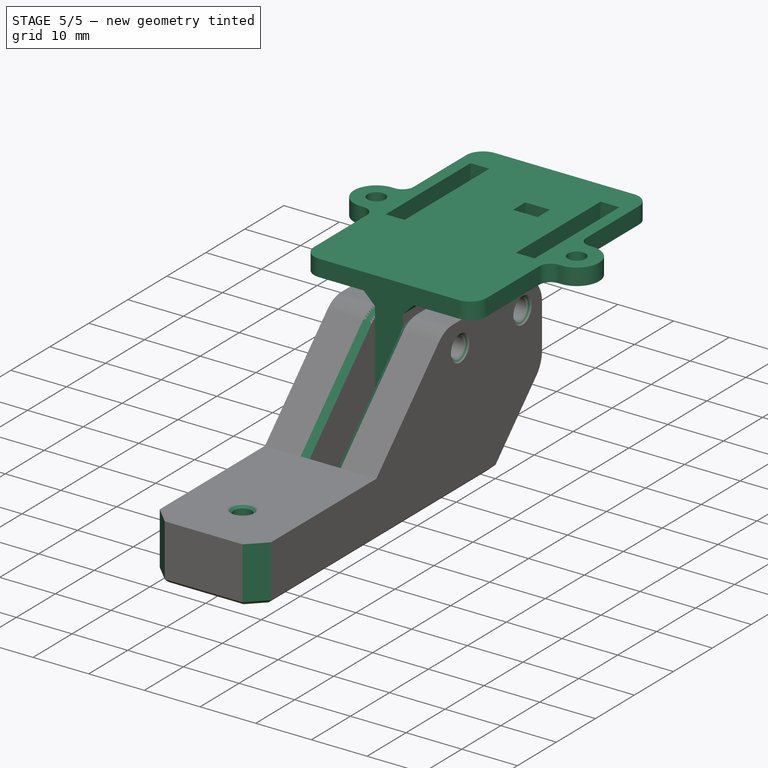
[diagram: stage 5 of 5 — iso view after this stage's code; geometry added in this stage tinted green]
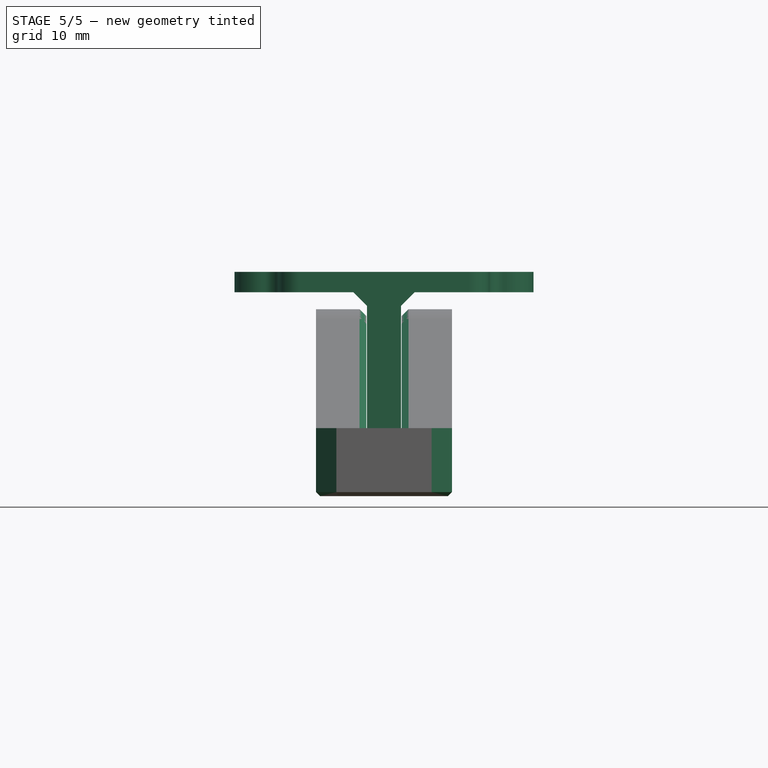
[diagram: stage 5 of 5 — front view after this stage's code; geometry added in this stage tinted green]
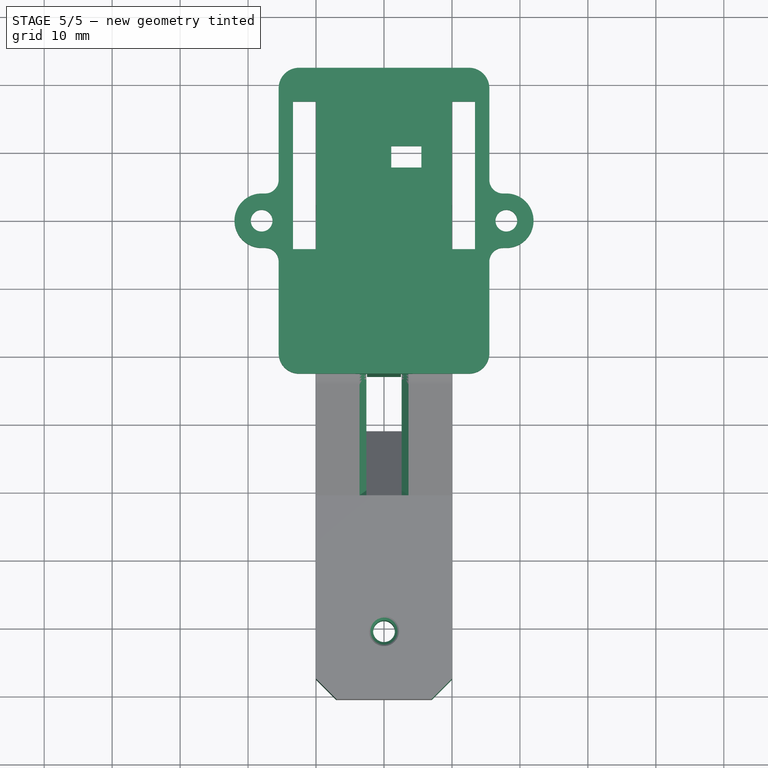
[diagram: stage 5 of 5 — top view after this stage's code; geometry added in this stage tinted green]
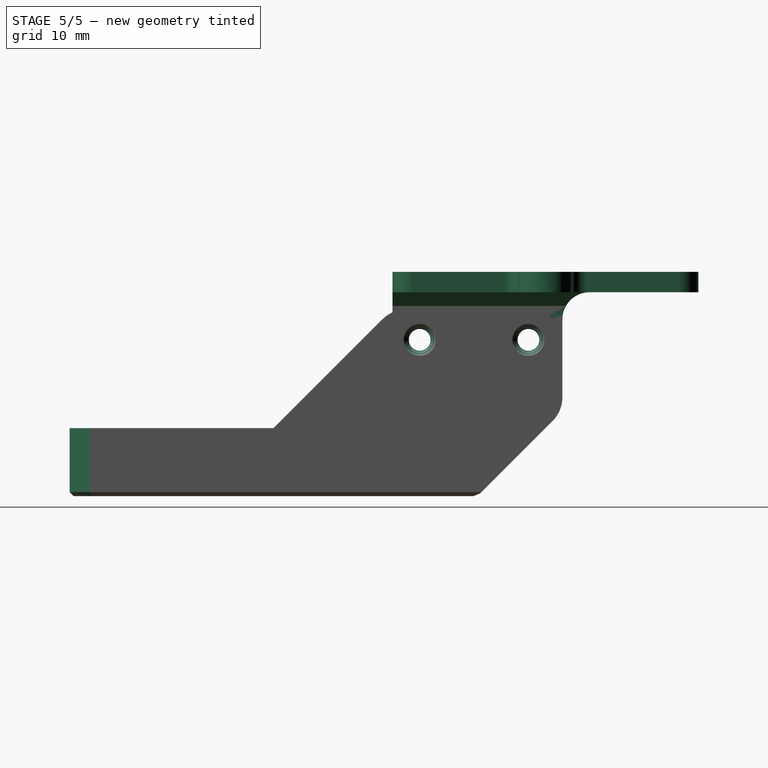
[diagram: stage 5 of 5 — right view after this stage's code; geometry added in this stage tinted green]
FEATURE [App::Point] Origin009  label="Origine-point004"
  Role = Origin
FEATURE [PartDesign::Chamfer] Chamfer004
  Angle = 45
  Base = -> Chamfer003 [Edge12,Edge14,Edge13,Edge11,Edge10,Edge9,Edge8,Edge44,Edge49,Edge47,Edge43,Edge41,Edge39,Edge37]
  BaseFeature = -> Chamfer003
  ChamferType = 0
  FlipDirection = false
  Refine = true
  Size = 0.4
  Size2 = 1
  SupportTransform = false
  Suppressed = false
  UseAllEdges = false
FEATURE [Sketcher::SketchObject] Sketch014
  ArcFitTolerance = 1e-06
  AttachmentSupport = -> [Fillet004]
  ExternalGeometry = -> [Fillet004]
  ExternalTypes = [0,0,0]
  FullyConstrained = true
  MakeInternals = true
  MapMode = 5
  Placement = pos=(0,0,-23) rot=(0,0,1;0rad)
  sketch-geometry (2):
    g0: Circle CenterX=0 CenterY=-70.5 CenterZ=0 NormalX=0 NormalY=0 NormalZ=1 AngleXU=0 Radius=1.6
    g1: Circle [constr] CenterX=0 CenterY=-70.5 CenterZ=0 NormalX=0 NormalY=0 NormalZ=1 AngleXU=0 Radius=10
  constraints (5):
    c: PointOnObject(g0,g-2)
    c: Coincident(g1,g0)
    c: Tangent(g1,g-4)
    c: Tangent(g1,g-3)
    c: Diameter(g0) = 3.2
FEATURE [PartDesign::Pocket] Pocket008
  BaseFeature = -> Fillet004
  Direction = (0,0,-1)
  Length = 20
  Length2 = 5
  Profile = -> Sketch014
  ReferenceAxis = -> Sketch014 [N_Axis]
  Refine = true
  SideType = 0
  Suppressed = false
  Type = 0
  Type2 = 0
FEATURE [PartDesign::Chamfer] Chamfer005
  Angle = 45
  Base = -> Pocket008 [Edge8,Edge34]
  BaseFeature = -> Pocket008
  ChamferType = 0
  FlipDirection = false
  Refine = true
  Size = 3
  Size2 = 1
  SupportTransform = false
  Suppressed = false
  UseAllEdges = false
FEATURE [PartDesign::Chamfer] Chamfer006
  Angle = 45
  Base = -> Chamfer005 [Face5]
  BaseFeature = -> Chamfer005
  ChamferType = 0
  FlipDirection = false
  Refine = true
  Size = 0.6
  Size2 = 1
  SupportTransform = false
  Suppressed = false
  UseAllEdges = false
FEATURE [PartDesign::Chamfer] Chamfer007
  Angle = 45
  Base = -> Chamfer006 [Edge32,Edge72]
  BaseFeature = -> Chamfer006
  ChamferType = 0
  FlipDirection = false
  Refine = true
  Size = 1
  Size2 = 1
  SupportTransform = false
  Suppressed = false
  UseAllEdges = false
FEATURE [PartDesign::Chamfer] Chamfer008
  Angle = 45
  Base = -> Chamfer007 [Edge48,Edge11,Edge49,Edge31,Edge30,Edge65,Edge64,Edge83,Edge84]
  BaseFeature = -> Chamfer007
  ChamferType = 0
  FlipDirection = false
  Refine = true
  Size = 0.6
  Size2 = 1
  SupportTransform = false
  Suppressed = false
  UseAllEdges = false
FEATURE [PartDesign::Body] Body003  label="EquerreCamSupport"
  AllowCompound = true
  Group = -> [ShapeBinder002,Sketch012,Pad005,Sketch013,Pocket007,Fillet004,Sketch014,Pocket008,Chamfer005,Chamfer006,Chamfer007,Chamfer008]
  Origin = -> Origin008
  Tip = -> Chamfer008
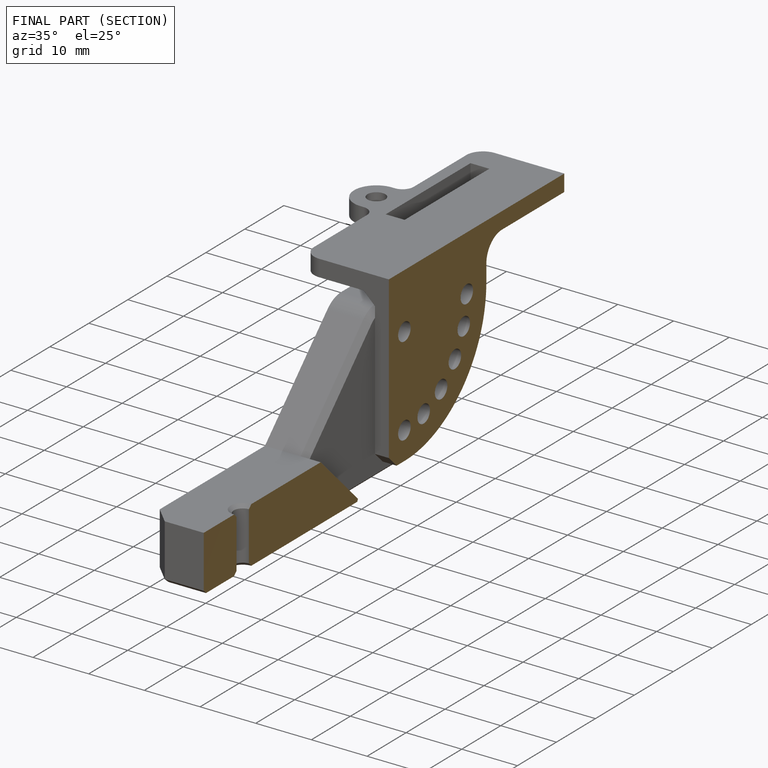
[diagram: finished part — half-section view (interior)]
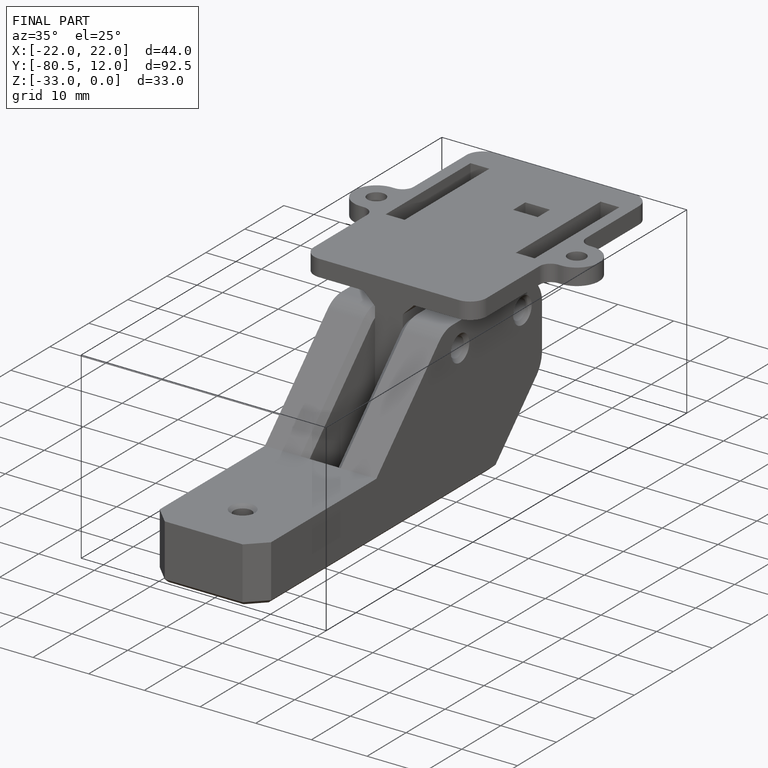
[diagram: finished part — iso view with bounding-box wireframe]
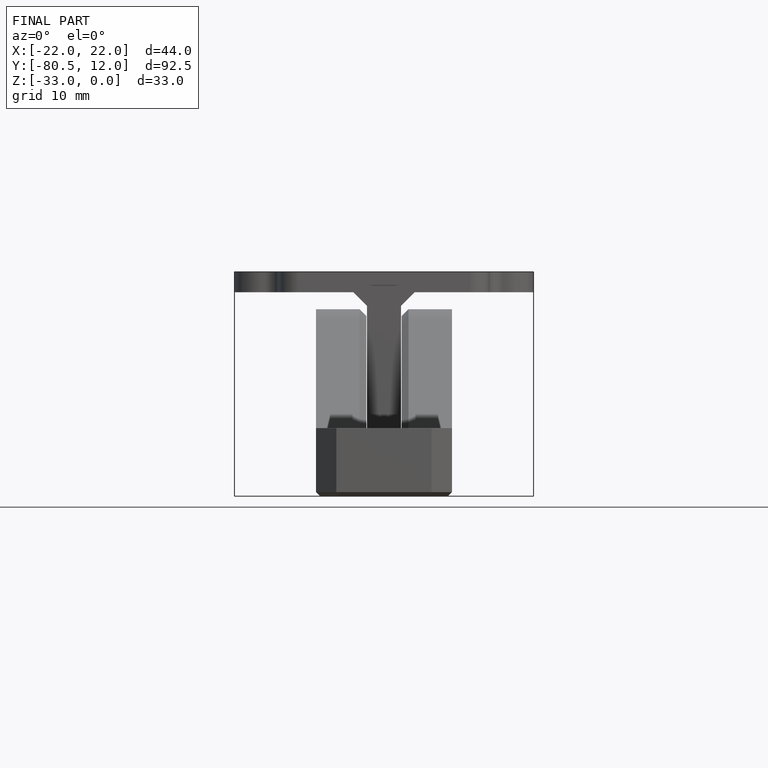
[diagram: finished part — front view with bounding-box wireframe]
